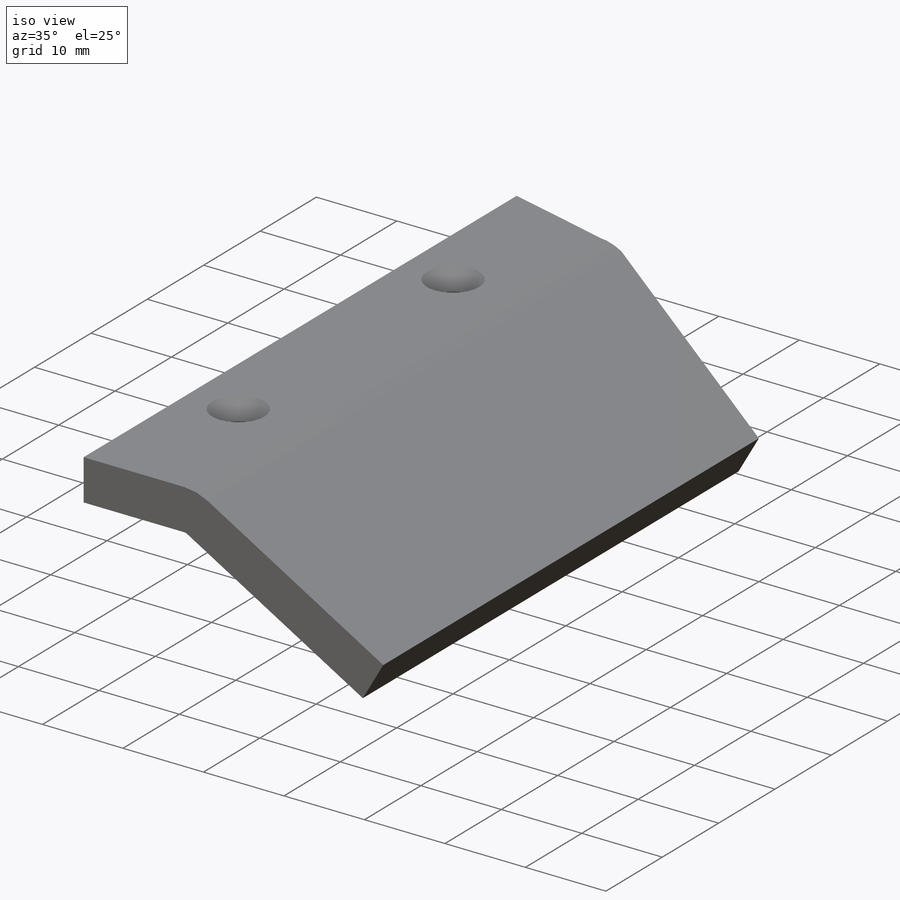
[diagram: iso view]
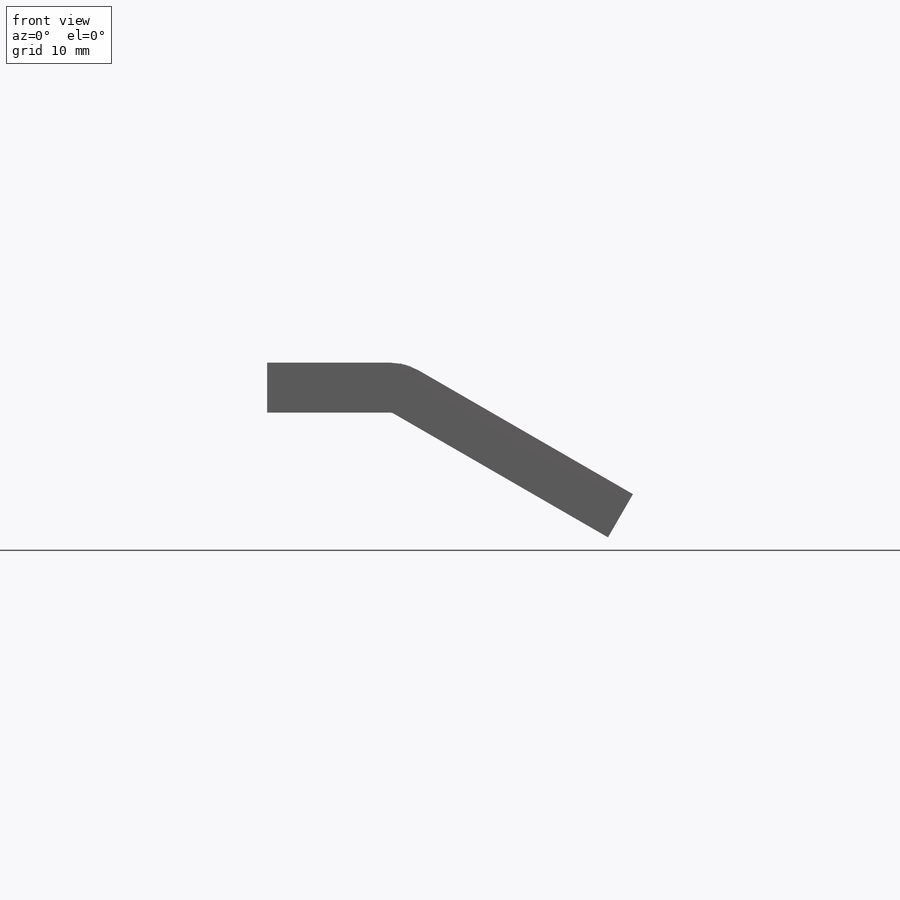
[diagram: front view]
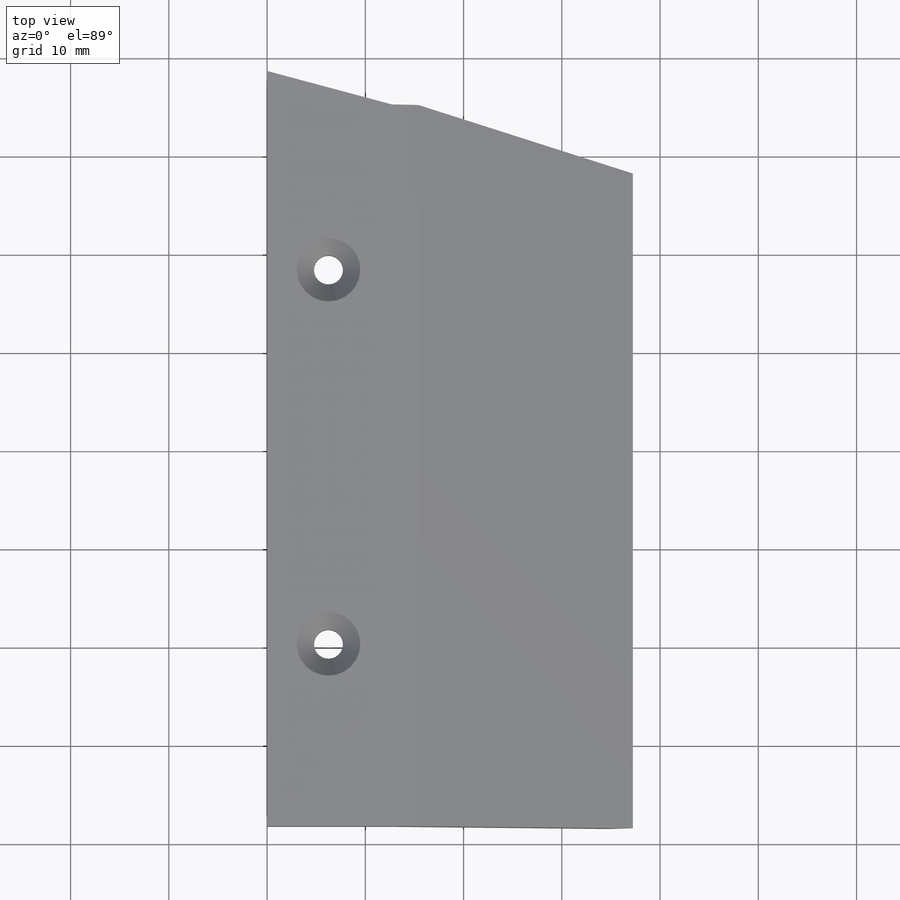
[diagram: top view]
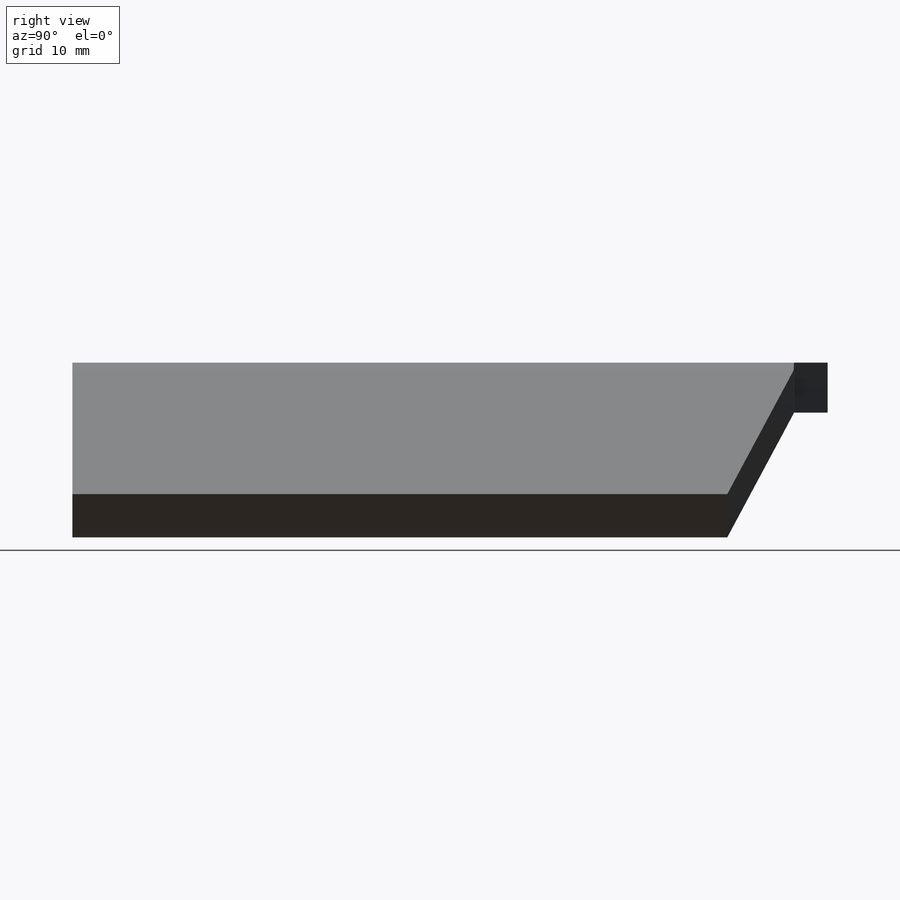
[diagram: right view]
SOLIDWORKS PART (.sldprt)
format: sldprt  version: not decoded by parser v0  size: 540,672 bytes
history: native  units: mm
features: sketch x13, sheet_metal_op x4, hole x3, material x1, cut_extrude x1 + 2 further entries (+12 scaffold rows collapsed; 3 parser-record rows omitted)
feature tree (39):
  scaffold x12  (default folders/planes/origin — collapsed)
  material  "Delrin 2700 NC010, Low Viscosity Acetal Copolymer (SS)"
  sketch  "Sketch1"  dims[c1.D1=76.8604mm c1.D2=12.7mm c1.D3=12.7mm c2.D3=~15.045279deg c3.D3=~261.799388mm c3.D1=0.7366mm c3.D2=0.5 c4.D3=0.0deg c4.D6=~28.64789deg]
  sheet_metal_op  "Base-Flange1"
  sketch  "Sketch8"  dims[c1.D1=25.4mm c2.D1=~261.799388mm c2.D2=25.4mm c3.D1=0.7366mm c3.D4=~523.598776mm c3.D5=1.0 c3.D8=~0.145531deg c3.D9=~0.145531deg c4.D1=0.7366mm c4.D2=~28.64789deg c4.D3=0.0deg c4.D6=10.0mm c4.D7=25.4mm]
  hole  "CSK for #4 Flat Head Socket Cap Screw1"  Diameter=2.9464mm Depth=17.78mm
  sketch  "Sketch10"  dims[D1=38.1mm]
  sketch  "Sketch9"  dims[hole-wizard template sketch: 40 standard entries collapsed; hole parameters kept: c6.Thru Hole Dia.=2.9464mm c6.Thru Hole Depth=17.78mm c6.Near C'Sink Dia.=6.477mm c6.Near C'Sink Angle=~1431.169987mm]  [1 undecoded]
  sketch  "Bend-Lines1"
  sketch  "Bounding-Box1"
  sketch  "Sketch11"  dims[D1=~0.520677mm]
  cut_extrude  "Cut-Extrude1"  Depth=0.0508mm
  sheet_metal_op  "Sheet-Metal(3)"
  "Flat-Pattern(3)"
  sketch  "Bend-Lines2"
  sketch  "Bounding-Box2"
  parser-record x3  (decoder bookkeeping rows leaked as tree rows — omitted from the tree; the rows remain in map.json)
  hole  "Sheet-Metal(4)"  Diameter=0.7366mm
  sheet_metal_op  "Flat-Pattern(3)"
  sketch  "Bend-Lines2"
  sketch  "Bounding-Box2"
  hole  "Sheet-Metal(5)"  Diameter=0.7366mm
  sheet_metal_op  "Flat-Pattern(3)"
  sketch  "Bend-Lines2"
  sketch  "Bounding-Box2"
  "Flatten-<EdgeBend1>1"
decode coverage: 9 of 21 modeling features carry decoded parameters; 2 rows unclassified (native names shown)
note: ~ marks probable driven/reference dimensions
note: suppression state not decoded; provenance and decode notes live in map.json
note: 1 required parameter value undecoded (feature->parameter linkage not recoverable at this tier; creation-order binding heuristic only, values carry confidence <= 0.55)
